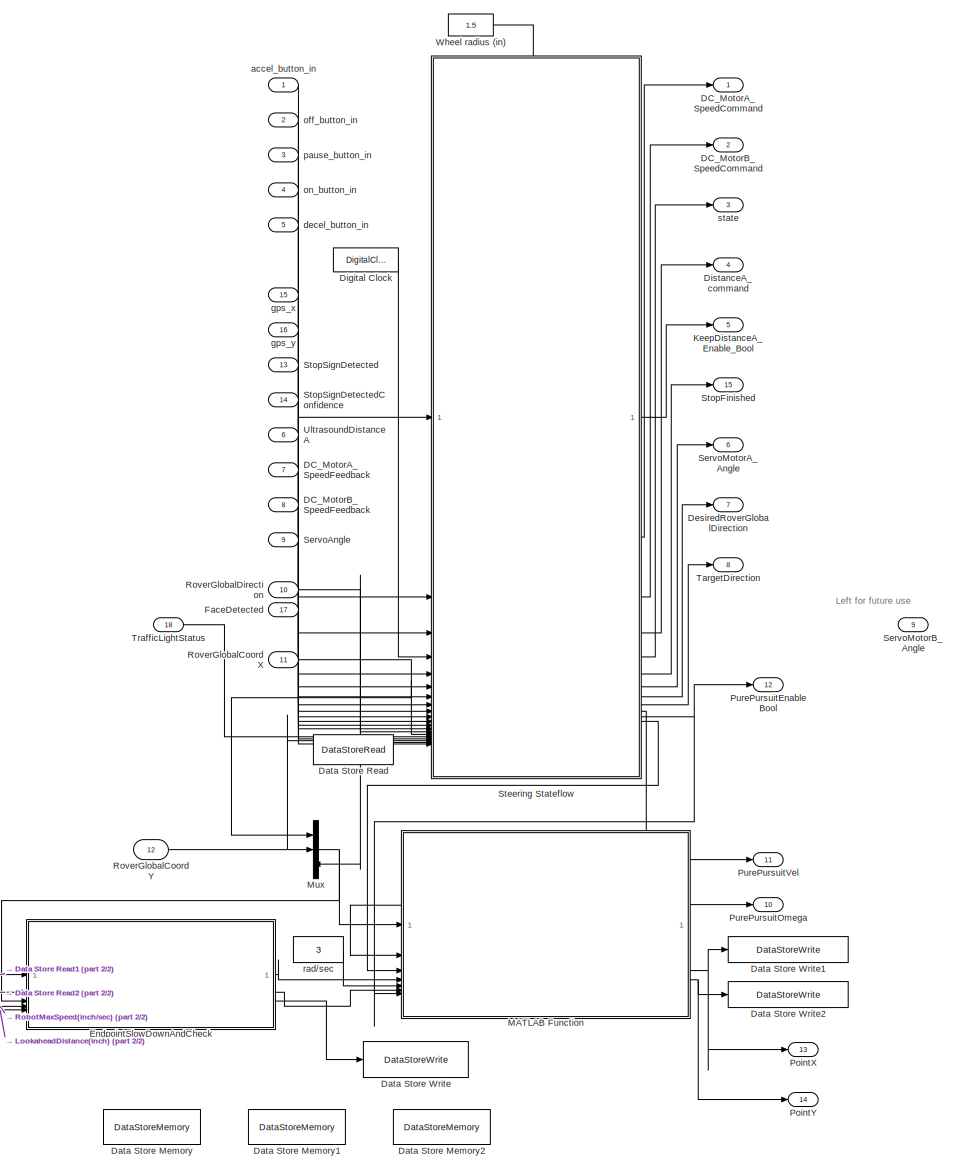
[diagram: root canvas - part 1/2, most of the canvas]
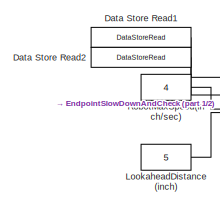
[diagram: root canvas - part 2/2, bottom left region]
MODEL slx_dbdcc0ecab89
KIND model
CONFIG AbsTol = auto
CONFIG EnableMultiTasking = off
CONFIG FixedStep = 0.1
CONFIG MaxStep = auto
CONFIG MinStep = auto
CONFIG RelTol = 1e-3
CONFIG SampleTimeConstraint = Unconstrained
CONFIG SolverName = FixedStepDiscrete
CONFIG StartTime = 0.0
CONFIG StopTime = Inf
BLOCK [Outport] DC_MotorA_SpeedCommand
BLOCK [Inport] DC_MotorA_SpeedFeedback
  Port = 7
BLOCK [Outport] DC_MotorB_SpeedCommand
  Port = 2
BLOCK [Inport] DC_MotorB_SpeedFeedback
  Port = 8
BLOCK [DataStoreMemory] Data Store Memory
  DataStoreName = WayPointsDone
  ShowAdditionalParam = off
  WriteAfterWriteMsg = warning
BLOCK [DataStoreMemory] Data Store Memory1
  DataStoreName = CurrentLookaheadX
  ShowAdditionalParam = off
  WriteAfterWriteMsg = warning
BLOCK [DataStoreMemory] Data Store Memory2
  DataStoreName = CurrentLookaheadY
  ShowAdditionalParam = off
  WriteAfterWriteMsg = warning
BLOCK [DataStoreRead] Data Store Read
  DataStoreName = WayPointsDone
  IndexOptions = Index vector (dialog)
  Indices = 1
  OutputSizes = 1
BLOCK [DataStoreRead] Data Store Read1
  DataStoreName = CurrentLookaheadX
  IndexOptions = Index vector (dialog)
  Indices = 1
  OutputSizes = 1
BLOCK [DataStoreRead] Data Store Read2
  DataStoreName = CurrentLookaheadY
  IndexOptions = Index vector (dialog)
  Indices = 1
  OutputSizes = 1
BLOCK [DataStoreWrite] Data Store Write
  DataStoreName = WayPointsDone
  IndexOptions = Index vector (dialog)
  Indices = 1
  OutputSizes = 1
BLOCK [DataStoreWrite] Data Store Write1
  DataStoreName = CurrentLookaheadX
  IndexOptions = Index vector (dialog)
  Indices = 1
  OutputSizes = 1
BLOCK [DataStoreWrite] Data Store Write2
  DataStoreName = CurrentLookaheadY
  IndexOptions = Index vector (dialog)
  Indices = 1
  OutputSizes = 1
BLOCK [Outport] DesiredRoverGlobalDirection
  Port = 7
BLOCK [DigitalClock] Digital Clock
  SampleTime = 0.1
BLOCK [Outport] DistanceA_command
  Port = 4
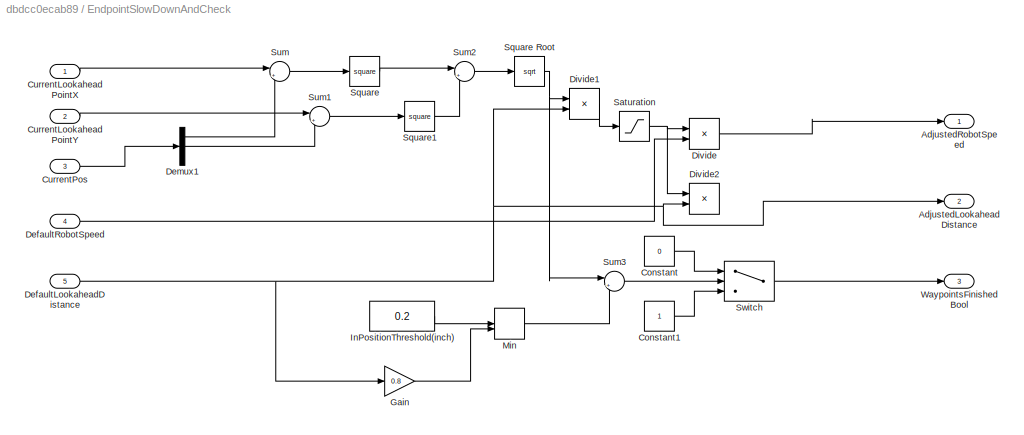
BLOCK [SubSystem] EndpointSlowDownAndCheck
BLOCK [Outport] EndpointSlowDownAndCheck/AdjustedLookaheadDistance
  Port = 2
BLOCK [Outport] EndpointSlowDownAndCheck/AdjustedRobotSpeed
BLOCK [Constant] EndpointSlowDownAndCheck/Constant
  Value = 0
BLOCK [Constant] EndpointSlowDownAndCheck/Constant1
BLOCK [Inport] EndpointSlowDownAndCheck/CurrentLookaheadPointX
BLOCK [Inport] EndpointSlowDownAndCheck/CurrentLookaheadPointY
  Port = 2
BLOCK [Inport] EndpointSlowDownAndCheck/CurrentPos
  Port = 3
BLOCK [Inport] EndpointSlowDownAndCheck/DefaultLookaheadDistance
  Port = 5
BLOCK [Inport] EndpointSlowDownAndCheck/DefaultRobotSpeed
  Port = 4
BLOCK [Demux] EndpointSlowDownAndCheck/Demux1
  Outputs = 3
BLOCK [Product] EndpointSlowDownAndCheck/Divide
  Inputs = **
BLOCK [Product] EndpointSlowDownAndCheck/Divide1
  Inputs = */
BLOCK [Product] EndpointSlowDownAndCheck/Divide2
  Inputs = **
BLOCK [Gain] EndpointSlowDownAndCheck/Gain
  Gain = 0.8
BLOCK [Constant] EndpointSlowDownAndCheck/InPositionThreshold(inch)
  Value = 0.2
BLOCK [MinMax] EndpointSlowDownAndCheck/Min
  Inputs = 2
BLOCK [Saturate] EndpointSlowDownAndCheck/Saturation
  LowerLimit = -1
  UpperLimit = 1
BLOCK [Math] EndpointSlowDownAndCheck/Square
  Operator = square
BLOCK [Sqrt] EndpointSlowDownAndCheck/Square Root
BLOCK [Math] EndpointSlowDownAndCheck/Square1
  Operator = square
BLOCK [Sum] EndpointSlowDownAndCheck/Sum
  Inputs = |+-
BLOCK [Sum] EndpointSlowDownAndCheck/Sum1
  Inputs = |+-
BLOCK [Sum] EndpointSlowDownAndCheck/Sum2
  Inputs = |++
BLOCK [Sum] EndpointSlowDownAndCheck/Sum3
  Inputs = |+-
BLOCK [Switch] EndpointSlowDownAndCheck/Switch
  Criteria = u2 > Threshold
  InputSameDT = off
  SaturateOnIntegerOverflow = off
BLOCK [Outport] EndpointSlowDownAndCheck/WaypointsFinishedBool
  Port = 3
BLOCK [Inport] FaceDetected
  Port = 17
BLOCK [Outport] KeepDistanceA_Enable_Bool
  Port = 5
BLOCK [Constant] LookaheadDistance(inch)
  Value = 5
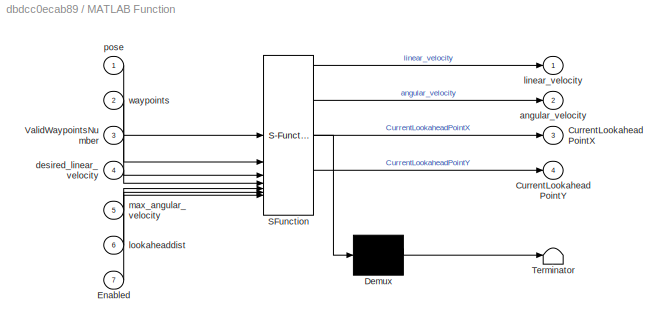
BLOCK [SubSystem] MATLAB Function
  ErrorFcn = Stateflow.Translate.translate
  PermitHierarchicalResolution = ExplicitOnly
  SFBlockType = MATLAB Function
  TreatAsAtomicUnit = on
BLOCK [Demux] MATLAB Function/ Demux 
  Outputs = 1
BLOCK [S-Function] MATLAB Function/ SFunction 
  EnableBusSupport = on
  FunctionName = sf_sfun
  PortCounts = [7 5]
  SFcnIsStateOwnerBlock = off
  SFunctionDeploymentMode = off
  Tag = Stateflow S-Function 2
BLOCK [Terminator] MATLAB Function/ Terminator 
BLOCK [Outport] MATLAB Function/CurrentLookaheadPointX
  Port = 3
BLOCK [Outport] MATLAB Function/CurrentLookaheadPointY
  Port = 4
BLOCK [Inport] MATLAB Function/Enabled
  Port = 7
BLOCK [Inport] MATLAB Function/ValidWaypointsNumber
  Port = 3
BLOCK [Outport] MATLAB Function/angular_velocity
  Port = 2
BLOCK [Inport] MATLAB Function/desired_linear_velocity
  Port = 4
BLOCK [Outport] MATLAB Function/linear_velocity
BLOCK [Inport] MATLAB Function/lookaheaddist
  Port = 6
BLOCK [Inport] MATLAB Function/max_angular_velocity
  Port = 5
BLOCK [Inport] MATLAB Function/pose
BLOCK [Inport] MATLAB Function/waypoints
  Port = 2
BLOCK [Mux] Mux
  DisplayOption = bar
  Inputs = 3
BLOCK [Outport] PointX
  Port = 13
BLOCK [Outport] PointY
  Port = 14
BLOCK [Outport] PurePursuitEnableBool
  Port = 12
BLOCK [Outport] PurePursuitOmega
  Port = 10
BLOCK [Outport] PurePursuitVel
  Port = 11
BLOCK [Constant] RobotMaxSpeed(inch//sec)
  Value = 4
BLOCK [Inport] RoverGlobalCoordX
  Port = 11
BLOCK [Inport] RoverGlobalCoordY
  Port = 12
BLOCK [Inport] RoverGlobalDirection
  Port = 10
BLOCK [Inport] ServoAngle
  Port = 9
BLOCK [Outport] ServoMotorA_Angle
  Port = 6
BLOCK [Outport] ServoMotorB_Angle
  Port = 9
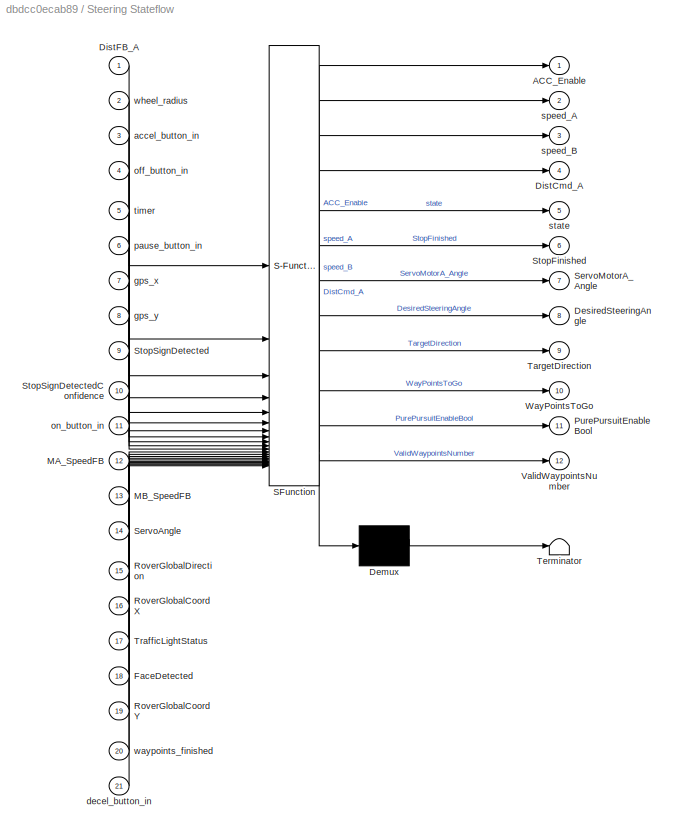
BLOCK [SubSystem] Steering Stateflow
  ErrorFcn = Stateflow.Translate.translate
  PermitHierarchicalResolution = ExplicitOnly
  PortSchema = {"entries":[{"content":{"sides":[{"content":{"connectorIds":["In3","In4","In6","In11","In21","In5","In7","In8","In9","In10","In1","In12","In13","In14","In15","In18","In17","In16","In19","In20"]},"type":"ConnectorPlacement.EquallySpacedRectSide","uuid":"80dcc8d6-aa19-4329-80f2-43be3f76ecea"},{"content":{"connectorIds":["Out2","Out3","Out5","Out4","Out1","Out6","Out7","Out8","Out9","Out10","Out11","...<+577ch>
  SFBlockType = Chart
  TreatAsAtomicUnit = on
BLOCK [Demux] Steering Stateflow/ Demux 
  Outputs = 1
BLOCK [S-Function] Steering Stateflow/ SFunction 
  EnableBusSupport = on
  FunctionName = sf_sfun
  PortCounts = [21 13]
  SFcnIsStateOwnerBlock = off
  SFunctionDeploymentMode = off
  Tag = Stateflow S-Function 3
BLOCK [Terminator] Steering Stateflow/ Terminator 
BLOCK [Outport] Steering Stateflow/ACC_Enable
BLOCK [Outport] Steering Stateflow/DesiredSteeringAngle
  Port = 8
BLOCK [Outport] Steering Stateflow/DistCmd_A
  Port = 4
BLOCK [Inport] Steering Stateflow/DistFB_A
BLOCK [Inport] Steering Stateflow/FaceDetected
  Port = 18
BLOCK [Inport] Steering Stateflow/MA_SpeedFB
  Port = 12
BLOCK [Inport] Steering Stateflow/MB_SpeedFB
  Port = 13
BLOCK [Outport] Steering Stateflow/PurePursuitEnableBool
  Port = 11
BLOCK [Inport] Steering Stateflow/RoverGlobalCoordX
  Port = 16
BLOCK [Inport] Steering Stateflow/RoverGlobalCoordY
  Port = 19
BLOCK [Inport] Steering Stateflow/RoverGlobalDirection
  Port = 15
BLOCK [Inport] Steering Stateflow/ServoAngle
  Port = 14
BLOCK [Outport] Steering Stateflow/ServoMotorA_Angle
  Port = 7
BLOCK [Outport] Steering Stateflow/StopFinished
  Port = 6
BLOCK [Inport] Steering Stateflow/StopSignDetected
  Port = 9
BLOCK [Inport] Steering Stateflow/StopSignDetectedConfidence
  Port = 10
BLOCK [Outport] Steering Stateflow/TargetDirection
  Port = 9
BLOCK [Inport] Steering Stateflow/TrafficLightStatus
  Port = 17
BLOCK [Outport] Steering Stateflow/ValidWaypointsNumber
  Port = 12
BLOCK [Outport] Steering Stateflow/WayPointsToGo
  Port = 10
BLOCK [Inport] Steering Stateflow/accel_button_in
  Port = 3
BLOCK [Inport] Steering Stateflow/decel_button_in
  Port = 21
BLOCK [Inport] Steering Stateflow/gps_x
  Port = 7
BLOCK [Inport] Steering Stateflow/gps_y
  Port = 8
BLOCK [Inport] Steering Stateflow/off_button_in
  Port = 4
BLOCK [Inport] Steering Stateflow/on_button_in
  Port = 11
BLOCK [Inport] Steering Stateflow/pause_button_in
  Port = 6
BLOCK [Outport] Steering Stateflow/speed_A
  Port = 2
BLOCK [Outport] Steering Stateflow/speed_B
  Port = 3
BLOCK [Outport] Steering Stateflow/state
  Port = 5
BLOCK [Inport] Steering Stateflow/timer
  Port = 5
BLOCK [Inport] Steering Stateflow/waypoints_finished
  Port = 20
BLOCK [Inport] Steering Stateflow/wheel_radius
  Port = 2
BLOCK [Outport] StopFinished
  Port = 15
BLOCK [Inport] StopSignDetected
  Port = 13
BLOCK [Inport] StopSignDetectedConfidence
  Port = 14
BLOCK [Outport] TargetDirection
  Port = 8
BLOCK [Inport] TrafficLightStatus
  Port = 18
BLOCK [Inport] UltrasoundDistanceA
  Port = 6
BLOCK [Constant] Wheel radius (in)
  Value = 1.5
BLOCK [Inport] accel_button_in
BLOCK [Inport] decel_button_in
  Port = 5
BLOCK [Inport] gps_x
  Port = 15
BLOCK [Inport] gps_y
  Port = 16
BLOCK [Inport] off_button_in
  Port = 2
BLOCK [Inport] on_button_in
  Port = 4
BLOCK [Inport] pause_button_in
  Port = 3
BLOCK [Constant] rad//sec
  Value = 3
BLOCK [Outport] state
  Port = 3
ANNOTATION (root): Left for future use
LINE DC_MotorA_SpeedFeedback:1 -> Steering Stateflow:12
LINE DC_MotorB_SpeedFeedback:1 -> Steering Stateflow:13
LINE Data Store Read1:1 -> EndpointSlowDownAndCheck:1
LINE Data Store Read2:1 -> EndpointSlowDownAndCheck:2
LINE Data Store Read:1 -> Steering Stateflow:20
LINE Digital Clock:1 -> Steering Stateflow:5
LINE EndpointSlowDownAndCheck/Constant1:1 -> EndpointSlowDownAndCheck/Switch:3
LINE EndpointSlowDownAndCheck/Constant:1 -> EndpointSlowDownAndCheck/Switch:1
LINE EndpointSlowDownAndCheck/CurrentLookaheadPointX:1 -> EndpointSlowDownAndCheck/Sum:1
LINE EndpointSlowDownAndCheck/CurrentLookaheadPointY:1 -> EndpointSlowDownAndCheck/Sum1:1
LINE EndpointSlowDownAndCheck/CurrentPos:1 -> EndpointSlowDownAndCheck/Demux1:1
NET EndpointSlowDownAndCheck/DefaultLookaheadDistance:1 -> EndpointSlowDownAndCheck/AdjustedLookaheadDistance:1, EndpointSlowDownAndCheck/Divide1:2, EndpointSlowDownAndCheck/Divide2:2, EndpointSlowDownAndCheck/Gain:1
LINE EndpointSlowDownAndCheck/DefaultRobotSpeed:1 -> EndpointSlowDownAndCheck/Divide:2
LINE EndpointSlowDownAndCheck/Demux1:1 -> EndpointSlowDownAndCheck/Sum:2
LINE EndpointSlowDownAndCheck/Demux1:2 -> EndpointSlowDownAndCheck/Sum1:2
LINE EndpointSlowDownAndCheck/Divide1:1 -> EndpointSlowDownAndCheck/Saturation:1
LINE EndpointSlowDownAndCheck/Divide:1 -> EndpointSlowDownAndCheck/AdjustedRobotSpeed:1
LINE EndpointSlowDownAndCheck/Gain:1 -> EndpointSlowDownAndCheck/Min:2
LINE EndpointSlowDownAndCheck/InPositionThreshold(inch):1 -> EndpointSlowDownAndCheck/Min:1
LINE EndpointSlowDownAndCheck/Min:1 -> EndpointSlowDownAndCheck/Sum3:2
NET EndpointSlowDownAndCheck/Saturation:1 -> EndpointSlowDownAndCheck/Divide2:1, EndpointSlowDownAndCheck/Divide:1
NET EndpointSlowDownAndCheck/Square Root:1 -> EndpointSlowDownAndCheck/Divide1:1, EndpointSlowDownAndCheck/Sum3:1
LINE EndpointSlowDownAndCheck/Square1:1 -> EndpointSlowDownAndCheck/Sum2:2
LINE EndpointSlowDownAndCheck/Square:1 -> EndpointSlowDownAndCheck/Sum2:1
LINE EndpointSlowDownAndCheck/Sum1:1 -> EndpointSlowDownAndCheck/Square1:1
LINE EndpointSlowDownAndCheck/Sum2:1 -> EndpointSlowDownAndCheck/Square Root:1
LINE EndpointSlowDownAndCheck/Sum3:1 -> EndpointSlowDownAndCheck/Switch:2
LINE EndpointSlowDownAndCheck/Sum:1 -> EndpointSlowDownAndCheck/Square:1
LINE EndpointSlowDownAndCheck/Switch:1 -> EndpointSlowDownAndCheck/WaypointsFinishedBool:1
LINE EndpointSlowDownAndCheck:1 -> MATLAB Function:4
LINE EndpointSlowDownAndCheck:2 -> MATLAB Function:6
LINE EndpointSlowDownAndCheck:3 -> Data Store Write:1
LINE FaceDetected:1 -> Steering Stateflow:18
LINE LookaheadDistance(inch):1 -> EndpointSlowDownAndCheck:5
LINE MATLAB Function:1 -> PurePursuitVel:1
LINE MATLAB Function:2 -> PurePursuitOmega:1
NET MATLAB Function:3 -> Data Store Write1:1, PointX:1
NET MATLAB Function:4 -> Data Store Write2:1, PointY:1
NET Mux:1 -> EndpointSlowDownAndCheck:3, MATLAB Function:1
LINE RobotMaxSpeed(inch//sec):1 -> EndpointSlowDownAndCheck:4
NET RoverGlobalCoordX:1 -> Mux:1, Steering Stateflow:16
NET RoverGlobalCoordY:1 -> Mux:2, Steering Stateflow:19
NET RoverGlobalDirection:1 -> Mux:3, Steering Stateflow:15
LINE ServoAngle:1 -> Steering Stateflow:14
LINE Steering Stateflow:1 -> KeepDistanceA_Enable_Bool:1
LINE Steering Stateflow:10 -> MATLAB Function:2
NET Steering Stateflow:11 -> MATLAB Function:7, PurePursuitEnableBool:1
LINE Steering Stateflow:12 -> MATLAB Function:3
LINE Steering Stateflow:2 -> DC_MotorA_SpeedCommand:1
LINE Steering Stateflow:3 -> DC_MotorB_SpeedCommand:1
LINE Steering Stateflow:4 -> DistanceA_command:1
LINE Steering Stateflow:5 -> state:1
LINE Steering Stateflow:6 -> StopFinished:1
LINE Steering Stateflow:7 -> ServoMotorA_Angle:1
LINE Steering Stateflow:8 -> DesiredRoverGlobalDirection:1
LINE Steering Stateflow:9 -> TargetDirection:1
LINE StopSignDetected:1 -> Steering Stateflow:9
LINE StopSignDetectedConfidence:1 -> Steering Stateflow:10
LINE TrafficLightStatus:1 -> Steering Stateflow:17
LINE UltrasoundDistanceA:1 -> Steering Stateflow:1
LINE Wheel radius (in):1 -> Steering Stateflow:2
LINE accel_button_in:1 -> Steering Stateflow:3
LINE decel_button_in:1 -> Steering Stateflow:21
LINE gps_x:1 -> Steering Stateflow:7
LINE gps_y:1 -> Steering Stateflow:8
LINE off_button_in:1 -> Steering Stateflow:4
LINE on_button_in:1 -> Steering Stateflow:11
LINE pause_button_in:1 -> Steering Stateflow:6
LINE rad//sec:1 -> MATLAB Function:5
note: NET lines group one-source signal fan-out (src -> all destinations, sorted); 1:1 wires keep LINE
CHART MATLAB Function states=1 transitions=1
  STATE_LABEL 'eML_blk_kernel()'
  STATE_LABEL 'SCRIPT:\nfunction [linear_velocity, angular_velocity, CurrentLookaheadPointX, CurrentLookaheadPointY] = MyPurePursuit(pose, waypoints, ValidWaypointsNumber, desired_linear_velocity, max_angular_velocity, lookaheaddist, Enabled)\n% MyPurePursuit - Implements Pure Pursuit with internal waypoint index tracking\n\n\n% Persistent variable to store current waypoint index\npersistent waypoint_index;\n\nCurrentLo...<+2309ch>'
CHART Steering Stateflow states=16 transitions=19
  STATE_LABEL 'WayPointsGeneration\n\n%first straight\nWayPointsToGo(1,:) = [0 0];\nWayPointsToGo(2,:) = [45 0];\nWayPointsToGo(3,:) = [84 0];\n%first turn\nWayPointsToGo(4,:) = [96 0];\nWayPointsToGo(5,:) = [96 -4];\nWayPointsToGo(6,:) = [96 -12];\nWayPointsToGo(7,:) = [96 -20];\nWayPointsToGo(8,:) = [90 -20];\nWayPointsToGo(9,:) = [84 -20];\n%the hill\nWayPointsToGo(10,:) = [36 -20];\nWayPointsToGo(11,:) = [36 -36];\nValidWay...<+31ch>'
  STATE_LABEL 'Test\n\nDistCmd_A = DistFB_A;\nDesiredSteeringAngle = RoverGlobalDirection + 360*5*pi/180;\nstate = 21;\n'
  STATE_LABEL 'WaitngForTurning\n\n%DistCmd_A = DistFB_A;\nACC_Enable = 1;\nstate = 23;\n'
  STATE_LABEL 'OFF\nspeed = 0\nspeed_A = speed;\nspeed_B = speed;\nstate = 0;\nACC_Enable = 0;\nDistCmd_A = 250;\nDesiredSteeringAngle = RoverGlobalDirection;\nServoMotorA_Angle = 90;\nPurePursuitEnableBool = 0;\nWayPointsToGo = zeros(100,2);\n'
  STATE_LABEL 'WaitForGoing\nPurePursuitEnableBool = 1;\nstate = 13;'
  STATE_LABEL 'Stop_for_5_seconds\nPurePursuitEnableBool = 0;\n'
  STATE_LABEL 'Not used in this lab'
  STATE_LABEL 'WayPointsGeneration2\n\nWayPointsToGo(1,:) = [0 0];\nWayPointsToGo(2,:) = [3 0];\nWayPointsToGo(3,:) = [6 0];\nWayPointsToGo(4,:) = [9 0];\nWayPointsToGo(5,:) = [12 0];\nWayPointsToGo(6,:) = [15 0];\nWayPointsToGo(7,:) = [18 0];\nWayPointsToGo(8,:) = [21 0];\nWayPointsToGo(9,:) = [24 0];\nWayPointsToGo(10,:) = [24 3];\nWayPointsToGo(11,:) = [24 6];\nWayPointsToGo(12,:) = [24 9];\nWayPointsToGo(13,:) = [24 12];\n...<+643ch>'
  STATE_LABEL 'SteeringToward\n'
  STATE_LABEL 'Initialize\nServoASweepUpperLimit = 135; % Degree\nServoASweepLowerLimit = 45; % Degree\nServoASweepSpeed = 7;\nDistCmd_A = 30; % cm\n%\nACC_Enable = 1;\nServoASweepDirection = 1;\nServoMotorA_Angle = ServoASweepLowerLimit;\nServoAStopSweeping = 0;\nSweepingData = zeros(2,180);\nfor i=1:180\n    SweepingData(1,i) = 90;\n    SweepingData(2,i) = 1500;\nend\nSweepingIndex = 0;\n%\nTurningAngleTrajectory = zeros(1,20)...<+115ch>'
  STATE_LABEL 'Rurning\nDesiredSteeringAngle = TurningAngleTrajectory(TurningAngleTrajectoryIndex);\nif TurningAngleTrajectoryIndex < 20\n    TurningAngleTrajectoryIndex = TurningAngleTrajectoryIndex + 1;\nend\n%TargetDirection = TargetGlobalAngle;\nstate = 2;'
  STATE_LABEL 'When angles are close, it means we reach the target angle\nso we can proceed to do the next tracking'
  STATE_LABEL 'Scanning\nSweepingIndex = SweepingIndex + 1;\nSweepingData(1,SweepingIndex) = ServoMotorA_Angle;\nSweepingData(2,SweepingIndex) = DistFB_A;\nServoMotorA_Angle = ServoMotorA_Angle + ServoASweepDirection*ServoASweepSpeed;\nif  ServoASweepDirection > 0\n    if ServoMotorA_Angle >=ServoASweepUpperLimit\n        ServoMotorA_Angle = ServoASweepUpperLimit;\n        ServoAStopSweeping = 1;\n    end\nelse\n    if Ser...<+144ch>'
  STATE_LABEL 'TurningAngleTrajectoryPlaning1\n\nfor i=1:20\n    TurningAngleTrajectory(i) =TargetGlobalAngle;\n    %No planning, just feeding the target angle directly\nend\nTurningAngleTrajectoryIndex = 1;\nstate = 5;'
  STATE_LABEL 'GetObjectDirection\nObjectDistance = 1500;\nObjectDirection  = 90;\nfor i=1:SweepingIndex\n    TempDistance = SweepingData(2,i);\n    if TempDistance<ObjectDistance\n        ObjectDistance = TempDistance;\n        ObjectDirection = SweepingData(1,i);\n    end\nend\nObjectDirection = ObjectDirection - ServoASweepDirection*ServoASweepSpeed*2;\n% This is for compasating the ultrasonic delay\nif ObjectDistance < ...<+390ch>'
  STATE_LABEL '[abs(TargetGlobalAngle-RoverGlobalDirection) < 0.1]'
  STATE_LABEL '[ServoAStopSweeping > 0]'
  STATE_LABEL 'Initialize\nServoASweepUpperLimit = 135; % Degree\nServoASweepLowerLimit = 45; % Degree\nServoASweepSpeed = 7;\nDistCmd_A = 30; % cm\n%\nACC_Enable = 1;\nServoASweepDirection = 1;\nServoMotorA_Angle = ServoASweepLowerLimit;\nServoAStopSweeping = 0;\nSweepingData = zeros(2,180);\nfor i=1:180\n    SweepingData(1,i) = 90;\n    SweepingData(2,i) = 1500;\nend\nSweepingIndex = 0;\n%\nTurningAngleTrajectory = zeros(1,20)...<+115ch>'
  STATE_LABEL 'Rurning\nDesiredSteeringAngle = TurningAngleTrajectory(TurningAngleTrajectoryIndex);\nif TurningAngleTrajectoryIndex < 20\n    TurningAngleTrajectoryIndex = TurningAngleTrajectoryIndex + 1;\nend\n%TargetDirection = TargetGlobalAngle;\nstate = 2;'
  STATE_LABEL 'When angles are close, it means we reach the target angle\nso we can proceed to do the next tracking'
  STATE_LABEL 'Scanning\nSweepingIndex = SweepingIndex + 1;\nSweepingData(1,SweepingIndex) = ServoMotorA_Angle;\nSweepingData(2,SweepingIndex) = DistFB_A;\nServoMotorA_Angle = ServoMotorA_Angle + ServoASweepDirection*ServoASweepSpeed;\nif  ServoASweepDirection > 0\n    if ServoMotorA_Angle >=ServoASweepUpperLimit\n        ServoMotorA_Angle = ServoASweepUpperLimit;\n        ServoAStopSweeping = 1;\n    end\nelse\n    if Ser...<+144ch>'
  STATE_LABEL 'TurningAngleTrajectoryPlaning1\n\nfor i=1:20\n    TurningAngleTrajectory(i) =TargetGlobalAngle;\n    %No planning, just feeding the target angle directly\nend\nTurningAngleTrajectoryIndex = 1;\nstate = 5;'
  STATE_LABEL 'GetObjectDirection\nObjectDistance = 1500;\nObjectDirection  = 90;\nfor i=1:SweepingIndex\n    TempDistance = SweepingData(2,i);\n    if TempDistance<ObjectDistance\n        ObjectDistance = TempDistance;\n        ObjectDirection = SweepingData(1,i);\n    end\nend\nObjectDirection = ObjectDirection - ServoASweepDirection*ServoASweepSpeed*2;\n% This is for compasating the ultrasonic delay\nif ObjectDistance < ...<+390ch>'
  STATE_LABEL 'WayPointsGeneration4\n\nWayPointsToGo(1,:) = [0 0];\nWayPointsToGo(2,:) = [10 0];\nWayPointsToGo(3,:) = [10 10];\nWayPointsToGo(4,:) = [0 10];\nWayPointsToGo(5,:) = [0 0];\nValidWaypointsNumber = 5;\nstate = 16;\n'
CHART  states=0 transitions=0
CHART  states=0 transitions=0
